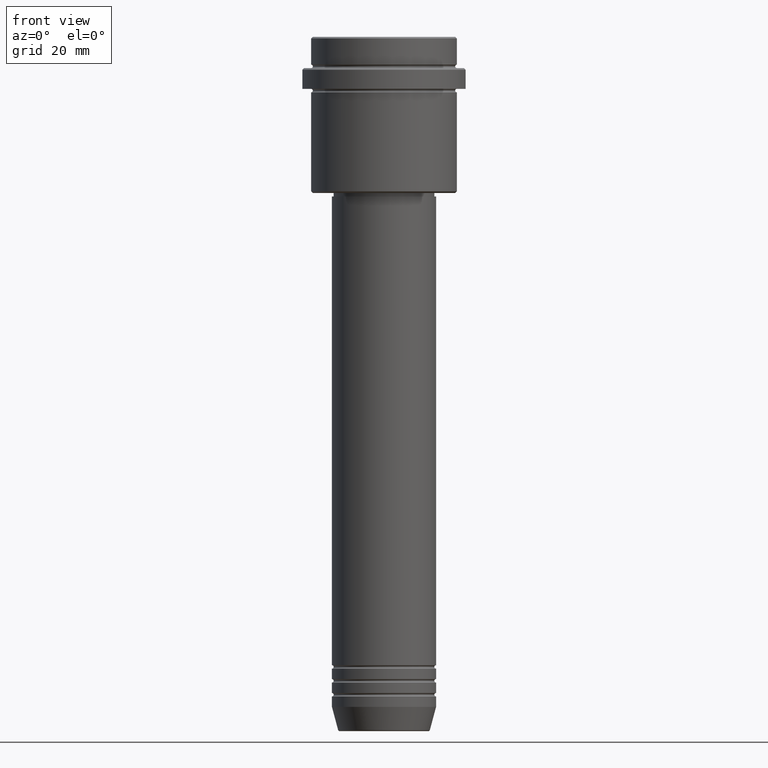
[diagram: clean part render]
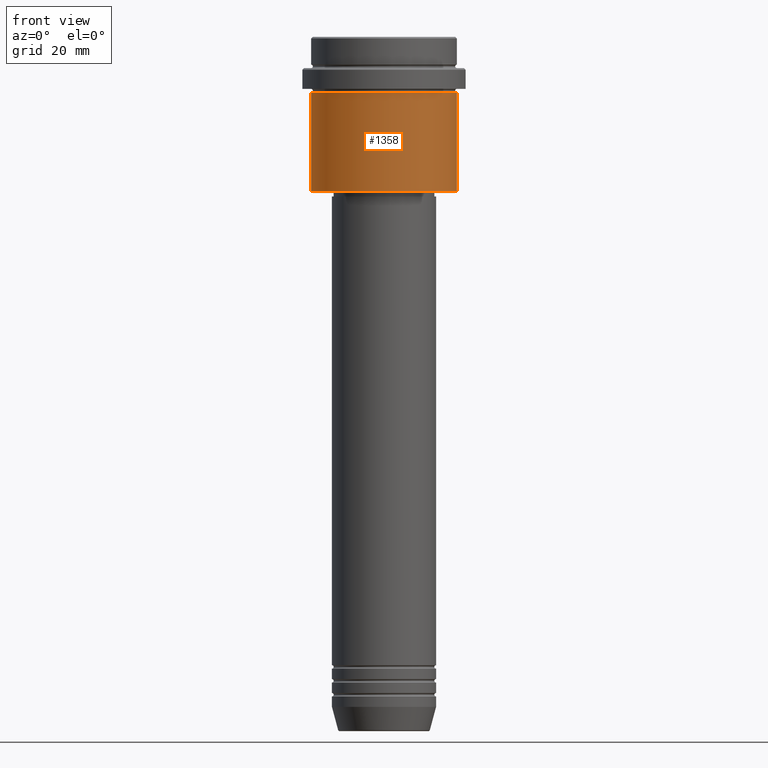
[diagram: same view with one face highlighted and labeled with its STEP entity id]
A machine part, front view. The second image highlights one B-rep face of the part: STEP entity #1358.
In plain terms, the highlighted cylindrical surface (partial cylindrical patch) has radius 21 mm, axis along (-0, -0, 1).
Its self-contained STEP definition (entity closure, byte-faithful):
#184 = CARTESIAN_POINT ( 'NONE',  ( -21.00000000000000000, 2.571758278209441661E-15, 0.000000000000000000 ) ) ;
#189 = VERTEX_POINT ( 'NONE', #1004 ) ;
#194 = DIRECTION ( 'NONE',  ( 1.000000000000000000, 0.000000000000000000, 0.000000000000000000 ) ) ;
#209 = CARTESIAN_POINT ( 'NONE',  ( 0.000000000000000000, 0.000000000000000000, 0.000000000000000000 ) ) ;
#262 = LINE ( 'NONE', #1408, #666 ) ;
#288 = CIRCLE ( 'NONE', #1012, 21.00000000000000000 ) ;
#297 = DIRECTION ( 'NONE',  ( -0.000000000000000000, -0.000000000000000000, 1.000000000000000000 ) ) ;
#378 = CARTESIAN_POINT ( 'NONE',  ( 21.00000000000000000, 0.000000000000000000, -44.49999999999998579 ) ) ;
#407 = ORIENTED_EDGE ( 'NONE', *, *, #567, .T. ) ;
#422 = EDGE_CURVE ( 'NONE', #1195, #1283, #262, .T. ) ;
#434 = DIRECTION ( 'NONE',  ( -0.000000000000000000, -0.000000000000000000, 1.000000000000000000 ) ) ;
#443 = EDGE_CURVE ( 'NONE', #988, #1283, #1407, .T. ) ;
#566 = EDGE_LOOP ( 'NONE', ( #1279, #407, #1211, #674 ) ) ;
#567 = EDGE_CURVE ( 'NONE', #189, #1195, #288, .T. ) ;
#600 = DIRECTION ( 'NONE',  ( -0.000000000000000000, -0.000000000000000000, 1.000000000000000000 ) ) ;
#618 = CARTESIAN_POINT ( 'NONE',  ( 0.000000000000000000, 0.000000000000000000, -16.00000000000000355 ) ) ;
#632 = DIRECTION ( 'NONE',  ( 1.000000000000000000, 0.000000000000000000, 0.000000000000000000 ) ) ;
#636 = DIRECTION ( 'NONE',  ( -0.000000000000000000, -0.000000000000000000, 1.000000000000000000 ) ) ;
#666 = VECTOR ( 'NONE', #434, 1000.000000000000000 ) ;
#674 = ORIENTED_EDGE ( 'NONE', *, *, #443, .F. ) ;
#733 = CARTESIAN_POINT ( 'NONE',  ( -21.00000000000000000, 2.571758278209441661E-15, -16.00000000000000355 ) ) ;
#827 = FACE_OUTER_BOUND ( 'NONE', #566, .T. ) ;
#884 = VECTOR ( 'NONE', #297, 1000.000000000000000 ) ;
#934 = AXIS2_PLACEMENT_3D ( 'NONE', #209, #600, #632 ) ;
#981 = DIRECTION ( 'NONE',  ( -0.000000000000000000, -0.000000000000000000, 1.000000000000000000 ) ) ;
#988 = VERTEX_POINT ( 'NONE', #733 ) ;
#1004 = CARTESIAN_POINT ( 'NONE',  ( -21.00000000000000000, 2.571758278209441661E-15, -44.49999999999998579 ) ) ;
#1012 = AXIS2_PLACEMENT_3D ( 'NONE', #1294, #636, #1322 ) ;
#1147 = CARTESIAN_POINT ( 'NONE',  ( 21.00000000000000000, 0.000000000000000000, -16.00000000000000355 ) ) ;
#1178 = CYLINDRICAL_SURFACE ( 'NONE', #934, 21.00000000000000000 ) ;
#1195 = VERTEX_POINT ( 'NONE', #378 ) ;
#1211 = ORIENTED_EDGE ( 'NONE', *, *, #422, .T. ) ;
#1279 = ORIENTED_EDGE ( 'NONE', *, *, #1350, .F. ) ;
#1283 = VERTEX_POINT ( 'NONE', #1147 ) ;
#1294 = CARTESIAN_POINT ( 'NONE',  ( 0.000000000000000000, 0.000000000000000000, -44.49999999999998579 ) ) ;
#1322 = DIRECTION ( 'NONE',  ( -1.000000000000000000, 0.000000000000000000, 0.000000000000000000 ) ) ;
#1350 = EDGE_CURVE ( 'NONE', #189, #988, #1397, .T. ) ;
#1358 = ADVANCED_FACE ( 'NONE', ( #827 ), #1178, .T. ) ;
#1384 = AXIS2_PLACEMENT_3D ( 'NONE', #618, #981, #194 ) ;
#1397 = LINE ( 'NONE', #184, #884 ) ;
#1407 = CIRCLE ( 'NONE', #1384, 21.00000000000000000 ) ;
#1408 = CARTESIAN_POINT ( 'NONE',  ( 21.00000000000000000, 0.000000000000000000, 0.000000000000000000 ) ) ;